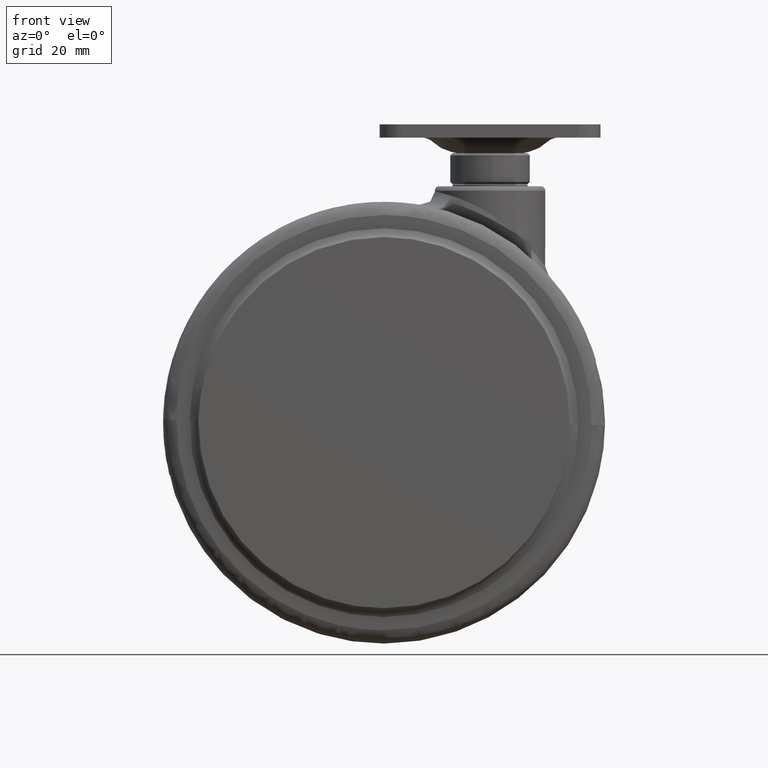
[diagram: clean part render]
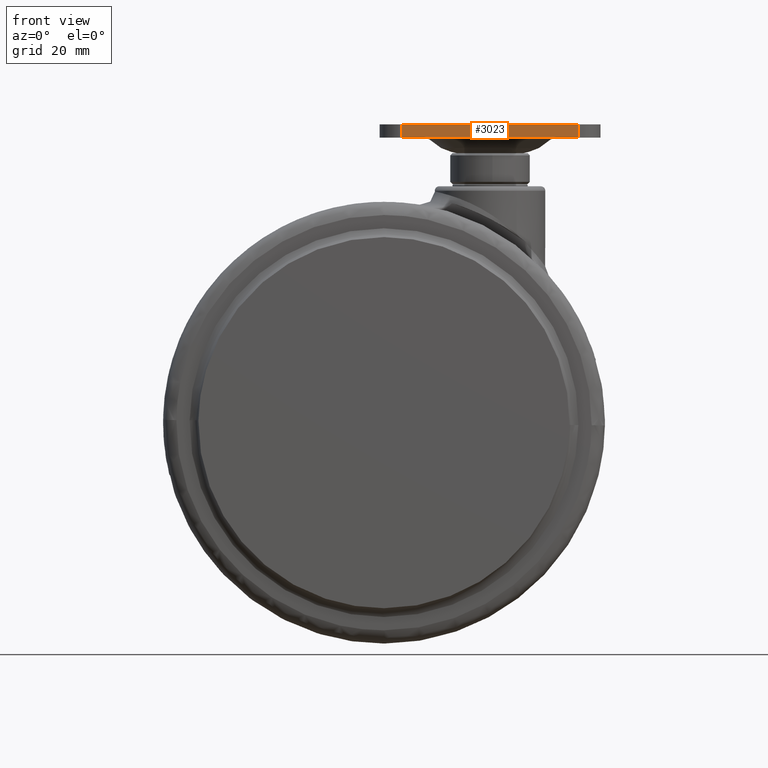
[diagram: same view with one face highlighted and labeled with its STEP entity id]
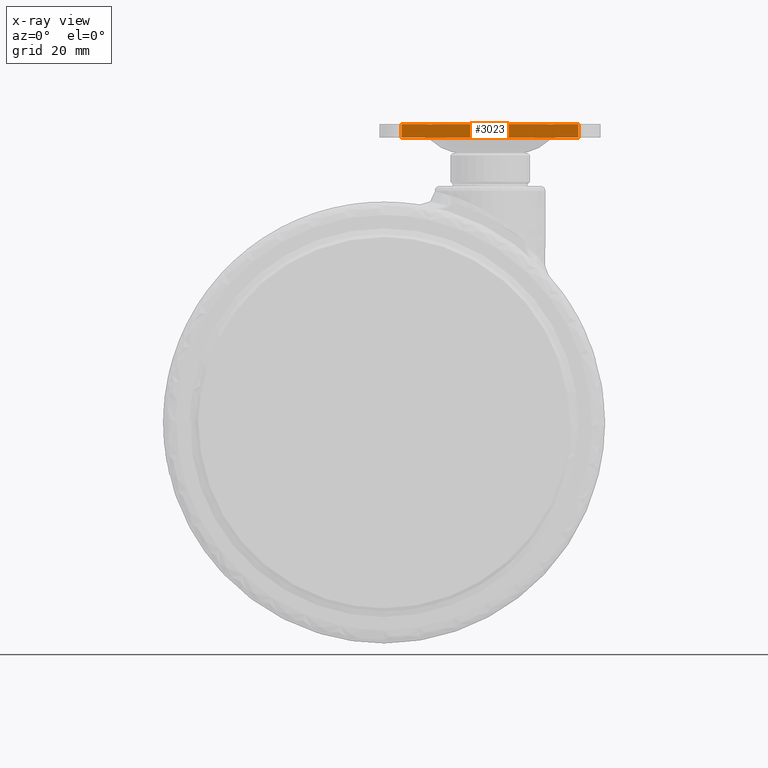
[diagram: x-ray of the same camera — body ghosted, the highlighted face saturated]
A machine part, front view. The second image highlights one B-rep face of the part: STEP entity #3023.
The next image is the same camera in x-ray: the body ghosted, the highlighted face saturated — about 0% of this face is hidden behind the body in this view.
In plain terms, the highlighted face is a freeform B-spline surface patch.
Its self-contained STEP definition (entity closure, byte-faithful):
#2637=CARTESIAN_POINT('',(-20.0,-30.0,11.000000000000121));
#2638=VERTEX_POINT('',#2637);
#2703=CARTESIAN_POINT('',(20.0,-30.0,11.000000000000121));
#2704=VERTEX_POINT('',#2703);
#2718=CARTESIAN_POINT('',(-20.0,-30.0,11.000000000000121));
#2719=CARTESIAN_POINT('',(20.0,-30.0,11.000000000000121));
#2720=QUASI_UNIFORM_CURVE('',1,(#2718,#2719),.UNSPECIFIED.,.F.,.U.);
#2721=EDGE_CURVE('',#2638,#2704,#2720,.T.);
#2763=CARTESIAN_POINT('',(-20.0,-30.0,14.0));
#2764=VERTEX_POINT('',#2763);
#2778=CARTESIAN_POINT('',(20.0,-30.0,14.0));
#2779=VERTEX_POINT('',#2778);
#2780=CARTESIAN_POINT('',(-20.0,-30.0,14.0));
#2781=CARTESIAN_POINT('',(20.0,-30.0,14.0));
#2782=QUASI_UNIFORM_CURVE('',1,(#2780,#2781),.UNSPECIFIED.,.F.,.U.);
#2783=EDGE_CURVE('',#2764,#2779,#2782,.T.);
#3000=CARTESIAN_POINT('',(20.0,-30.0,14.0));
#3001=CARTESIAN_POINT('',(20.0,-30.0,11.000000000000121));
#3002=QUASI_UNIFORM_CURVE('',1,(#3000,#3001),.UNSPECIFIED.,.F.,.U.);
#3003=EDGE_CURVE('',#2779,#2704,#3002,.T.);
#3008=CARTESIAN_POINT('',(-21.997999922472239,-30.0,10.850150005814699));
#3009=CARTESIAN_POINT('',(-21.997999922472239,-30.0,14.149850074651690));
#3010=CARTESIAN_POINT('',(21.998000995355849,-30.0,10.850150005814699));
#3011=CARTESIAN_POINT('',(21.998000995355849,-30.0,14.149850074651690));
#3012=B_SPLINE_SURFACE_WITH_KNOTS('',1,1,((#3008,#3010),(#3009,#3011)),.UNSPECIFIED.,.F.,.F.,.U.,(2,2),(2,2),(0.0,3.299700068836980),(0.0,43.996000917828077),.UNSPECIFIED.);
#3013=ORIENTED_EDGE('',*,*,#2721,.T.);
#3014=ORIENTED_EDGE('',*,*,#3003,.F.);
#3015=ORIENTED_EDGE('',*,*,#2783,.F.);
#3016=CARTESIAN_POINT('',(-20.0,-30.0,14.0));
#3017=CARTESIAN_POINT('',(-20.0,-30.0,11.000000000000121));
#3018=QUASI_UNIFORM_CURVE('',1,(#3016,#3017),.UNSPECIFIED.,.F.,.U.);
#3019=EDGE_CURVE('',#2764,#2638,#3018,.T.);
#3020=ORIENTED_EDGE('',*,*,#3019,.T.);
#3021=EDGE_LOOP('',(#3013,#3014,#3015,#3020));
#3022=FACE_OUTER_BOUND('',#3021,.T.);
#3023=ADVANCED_FACE('',(#3022),#3012,.F.);